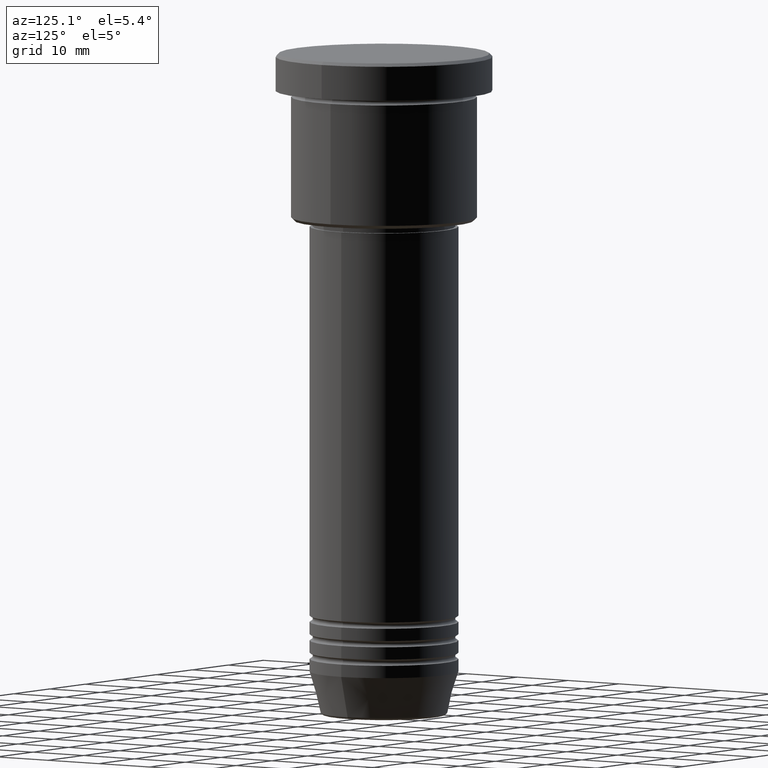
[diagram: clean part render]
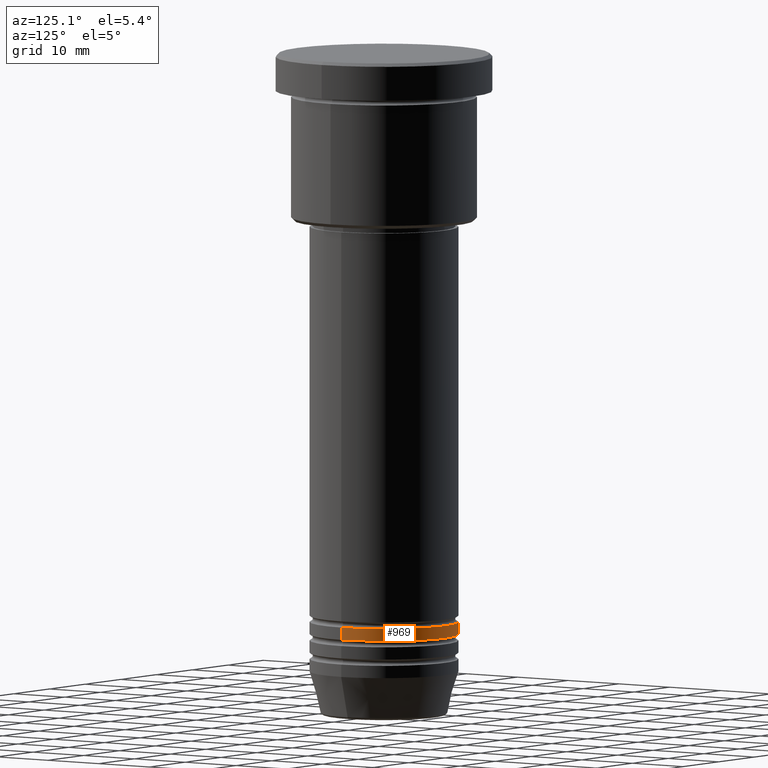
[diagram: same view with one face highlighted and labeled with its STEP entity id]
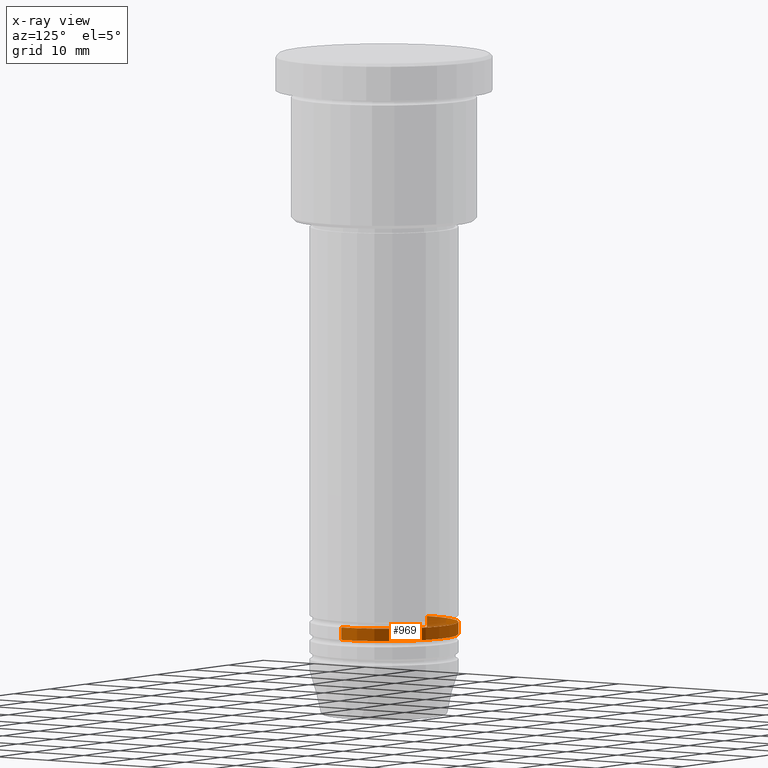
[diagram: x-ray of the same camera — body ghosted, the highlighted face saturated]
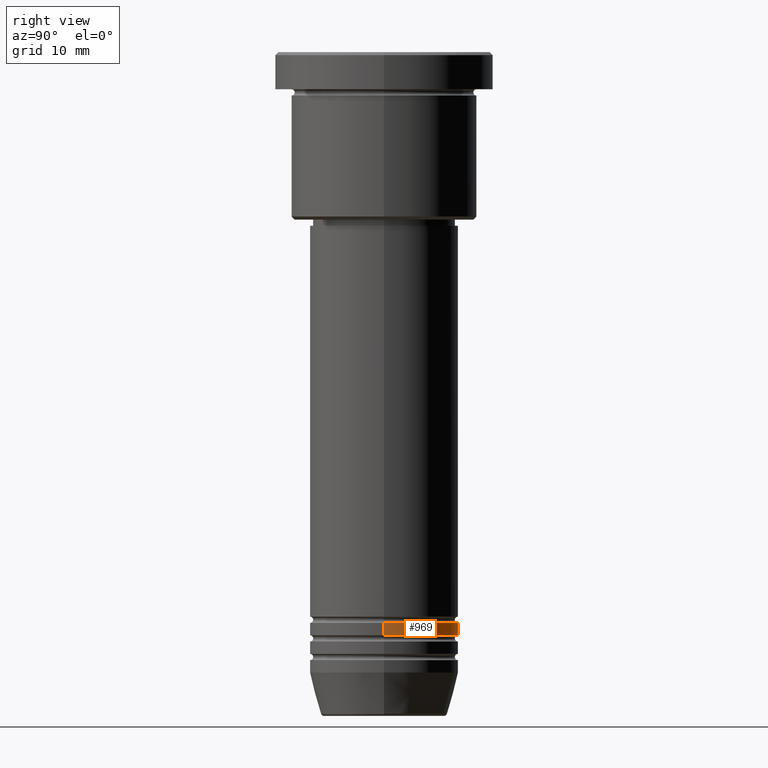
[diagram: same view with one face highlighted and labeled with its STEP entity id]
A machine part, auxiliary view. The second image highlights one B-rep face of the part: STEP entity #969.
The next image is the same camera in x-ray: the body ghosted, the highlighted face saturated — about 11% of this face is hidden behind the body in this view.
A second angle (right view) of the same face is appended — the face is thin or edge-on in the first view.
In plain terms, the highlighted cylindrical surface (partial cylindrical patch) has radius 12 mm, axis along (-0, -0, 1).
Its self-contained STEP definition (entity closure, byte-faithful):
#10 = EDGE_CURVE ( 'NONE', #967, #852, #899, .T. ) ;
#11 = ORIENTED_EDGE ( 'NONE', *, *, #10, .T. ) ;
#15 = EDGE_CURVE ( 'NONE', #967, #284, #986, .T. ) ;
#66 = DIRECTION ( 'NONE',  ( -0.000000000000000000, -0.000000000000000000, 1.000000000000000000 ) ) ;
#95 = CARTESIAN_POINT ( 'NONE',  ( 0.000000000000000000, 0.000000000000000000, -93.99999999999997158 ) ) ;
#146 = LINE ( 'NONE', #702, #976 ) ;
#180 = DIRECTION ( 'NONE',  ( -0.000000000000000000, -0.000000000000000000, 1.000000000000000000 ) ) ;
#183 = FACE_OUTER_BOUND ( 'NONE', #237, .T. ) ;
#237 = EDGE_LOOP ( 'NONE', ( #11, #515, #769, #1164 ) ) ;
#284 = VERTEX_POINT ( 'NONE', #710 ) ;
#325 = CARTESIAN_POINT ( 'NONE',  ( 0.000000000000000000, 0.000000000000000000, -91.99999999999998579 ) ) ;
#371 = CARTESIAN_POINT ( 'NONE',  ( 0.000000000000000000, 0.000000000000000000, 0.000000000000000000 ) ) ;
#376 = EDGE_CURVE ( 'NONE', #852, #404, #146, .T. ) ;
#404 = VERTEX_POINT ( 'NONE', #604 ) ;
#428 = CARTESIAN_POINT ( 'NONE',  ( -12.00000000000000000, 1.469576158976823947E-15, -93.99999999999997158 ) ) ;
#435 = DIRECTION ( 'NONE',  ( -0.000000000000000000, -0.000000000000000000, 1.000000000000000000 ) ) ;
#457 = DIRECTION ( 'NONE',  ( -0.000000000000000000, -0.000000000000000000, 1.000000000000000000 ) ) ;
#502 = DIRECTION ( 'NONE',  ( 1.000000000000000000, 0.000000000000000000, 0.000000000000000000 ) ) ;
#515 = ORIENTED_EDGE ( 'NONE', *, *, #376, .T. ) ;
#533 = CARTESIAN_POINT ( 'NONE',  ( 12.00000000000000000, 0.000000000000000000, -93.99999999999997158 ) ) ;
#548 = CIRCLE ( 'NONE', #902, 12.00000000000000000 ) ;
#564 = AXIS2_PLACEMENT_3D ( 'NONE', #95, #457, #1074 ) ;
#592 = AXIS2_PLACEMENT_3D ( 'NONE', #371, #435, #806 ) ;
#604 = CARTESIAN_POINT ( 'NONE',  ( -12.00000000000000000, 1.469576158976823947E-15, -91.99999999999998579 ) ) ;
#702 = CARTESIAN_POINT ( 'NONE',  ( -12.00000000000000000, 1.469576158976823947E-15, 0.000000000000000000 ) ) ;
#710 = CARTESIAN_POINT ( 'NONE',  ( 12.00000000000000000, 0.000000000000000000, -91.99999999999998579 ) ) ;
#769 = ORIENTED_EDGE ( 'NONE', *, *, #891, .F. ) ;
#781 = DIRECTION ( 'NONE',  ( -0.000000000000000000, -0.000000000000000000, 1.000000000000000000 ) ) ;
#804 = CYLINDRICAL_SURFACE ( 'NONE', #592, 12.00000000000000000 ) ;
#806 = DIRECTION ( 'NONE',  ( 1.000000000000000000, 0.000000000000000000, 0.000000000000000000 ) ) ;
#822 = CARTESIAN_POINT ( 'NONE',  ( 12.00000000000000000, 0.000000000000000000, 0.000000000000000000 ) ) ;
#852 = VERTEX_POINT ( 'NONE', #428 ) ;
#891 = EDGE_CURVE ( 'NONE', #284, #404, #548, .T. ) ;
#899 = CIRCLE ( 'NONE', #564, 12.00000000000000000 ) ;
#902 = AXIS2_PLACEMENT_3D ( 'NONE', #325, #66, #502 ) ;
#967 = VERTEX_POINT ( 'NONE', #533 ) ;
#969 = ADVANCED_FACE ( 'NONE', ( #183 ), #804, .T. ) ;
#974 = VECTOR ( 'NONE', #180, 1000.000000000000000 ) ;
#976 = VECTOR ( 'NONE', #781, 1000.000000000000000 ) ;
#986 = LINE ( 'NONE', #822, #974 ) ;
#1074 = DIRECTION ( 'NONE',  ( 1.000000000000000000, 0.000000000000000000, 0.000000000000000000 ) ) ;
#1164 = ORIENTED_EDGE ( 'NONE', *, *, #15, .F. ) ;